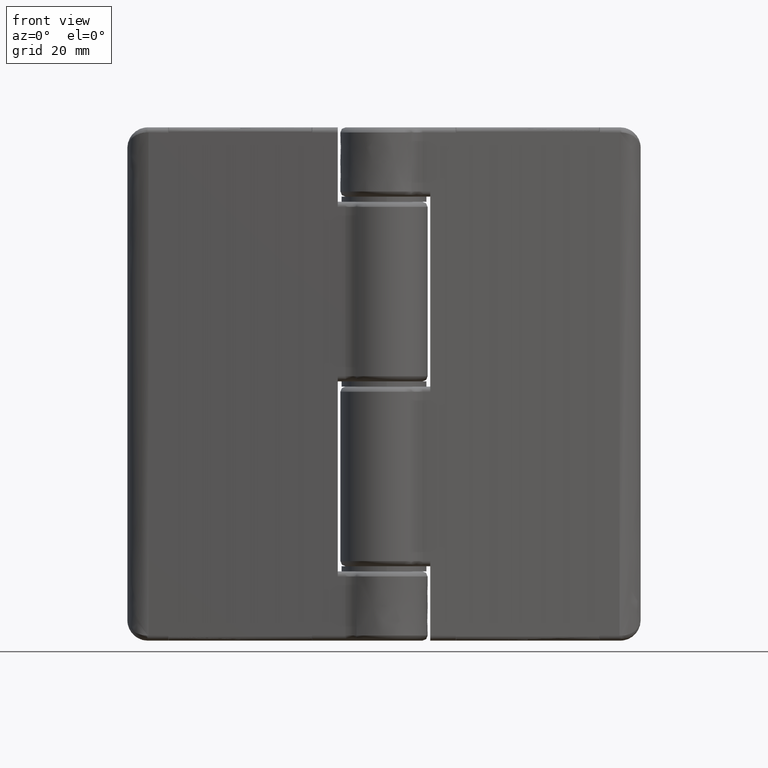
[diagram: clean part render]
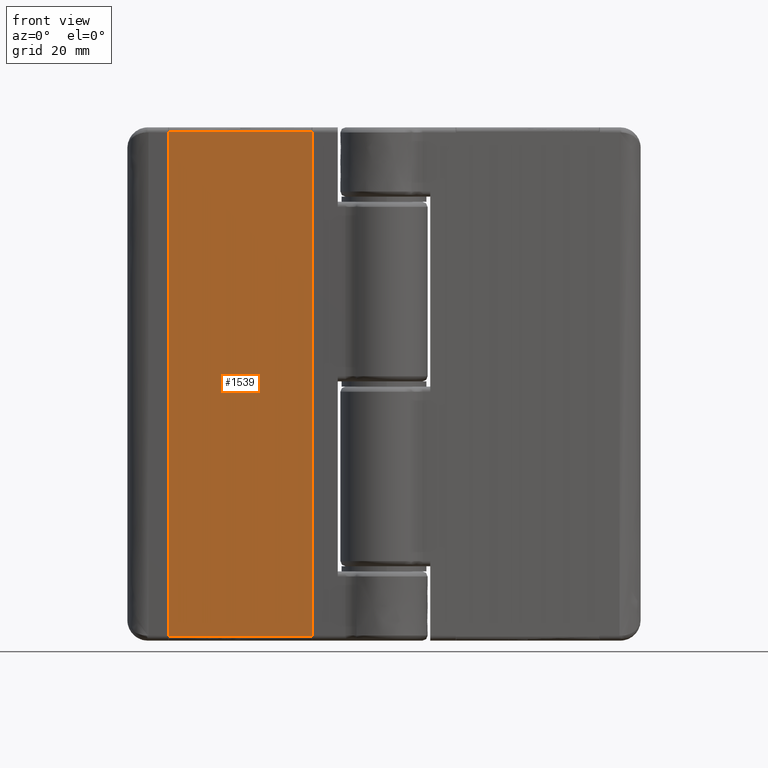
[diagram: same view with one face highlighted and labeled with its STEP entity id]
A machine part, front view. The second image highlights one B-rep face of the part: STEP entity #1539.
In plain terms, the highlighted face is a freeform B-spline surface patch.
Its self-contained STEP definition (entity closure, byte-faithful):
#924=CARTESIAN_POINT('',(-41.950000000000003,-2.704284952065235,99.200000000000003));
#925=VERTEX_POINT('',#924);
#941=CARTESIAN_POINT('',(-14.050000000000001,-5.145219321556240,99.200000000000003));
#942=VERTEX_POINT('',#941);
#943=CARTESIAN_POINT('',(-14.050000000000001,-5.145219321556240,99.200000000000003));
#944=CARTESIAN_POINT('',(-41.950000000000003,-2.704284952065235,99.200000000000003));
#945=QUASI_UNIFORM_CURVE('',1,(#943,#944),.UNSPECIFIED.,.F.,.U.);
#946=EDGE_CURVE('',#942,#925,#945,.T.);
#987=CARTESIAN_POINT('',(-41.950000000000003,-2.704284952065235,0.800000000000023));
#988=VERTEX_POINT('',#987);
#1009=CARTESIAN_POINT('',(-14.050000000000001,-5.145219321556240,0.800000000000023));
#1010=VERTEX_POINT('',#1009);
#1024=CARTESIAN_POINT('',(-41.950000000000003,-2.704284952065235,0.800000000000023));
#1025=CARTESIAN_POINT('',(-14.050000000000001,-5.145219321556240,0.800000000000023));
#1026=QUASI_UNIFORM_CURVE('',1,(#1024,#1025),.UNSPECIFIED.,.F.,.U.);
#1027=EDGE_CURVE('',#988,#1010,#1026,.T.);
#1465=CARTESIAN_POINT('',(-41.950000000000003,-2.704284952065235,99.200000000000003));
#1466=CARTESIAN_POINT('',(-41.950000000000003,-2.704284952065235,0.800000000000023));
#1467=QUASI_UNIFORM_CURVE('',1,(#1465,#1466),.UNSPECIFIED.,.F.,.U.);
#1468=EDGE_CURVE('',#925,#988,#1467,.T.);
#1519=CARTESIAN_POINT('',(-14.050000000000001,-5.145219321556240,99.200000000000003));
#1520=CARTESIAN_POINT('',(-14.050000000000001,-5.145219321556240,0.800000000000023));
#1521=QUASI_UNIFORM_CURVE('',1,(#1519,#1520),.UNSPECIFIED.,.F.,.U.);
#1522=EDGE_CURVE('',#942,#1010,#1521,.T.);
#1528=CARTESIAN_POINT('',(-12.656395054075610,-5.267143988581311,-4.115079457727763));
#1529=CARTESIAN_POINT('',(-43.343605694260702,-2.582360219569202,-4.115079457727763));
#1530=CARTESIAN_POINT('',(-12.656395054075610,-5.267143988581311,104.115075058905010));
#1531=CARTESIAN_POINT('',(-43.343605694260702,-2.582360219569202,104.115075058905010));
#1532=B_SPLINE_SURFACE_WITH_KNOTS('',1,1,((#1528,#1530),(#1529,#1531)),.UNSPECIFIED.,.F.,.F.,.U.,(2,2),(2,2),(0.0,30.804430862482100),(0.0,108.230154516632790),.UNSPECIFIED.);
#1533=ORIENTED_EDGE('',*,*,#1468,.T.);
#1534=ORIENTED_EDGE('',*,*,#1027,.T.);
#1535=ORIENTED_EDGE('',*,*,#1522,.F.);
#1536=ORIENTED_EDGE('',*,*,#946,.T.);
#1537=EDGE_LOOP('',(#1533,#1534,#1535,#1536));
#1538=FACE_OUTER_BOUND('',#1537,.T.);
#1539=ADVANCED_FACE('',(#1538),#1532,.F.);